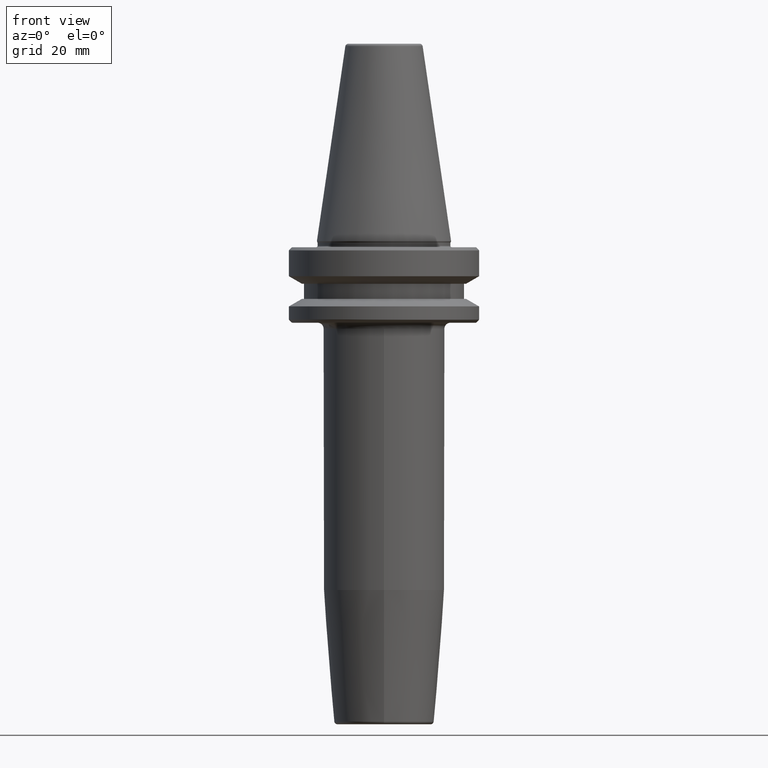
[diagram: clean part render]
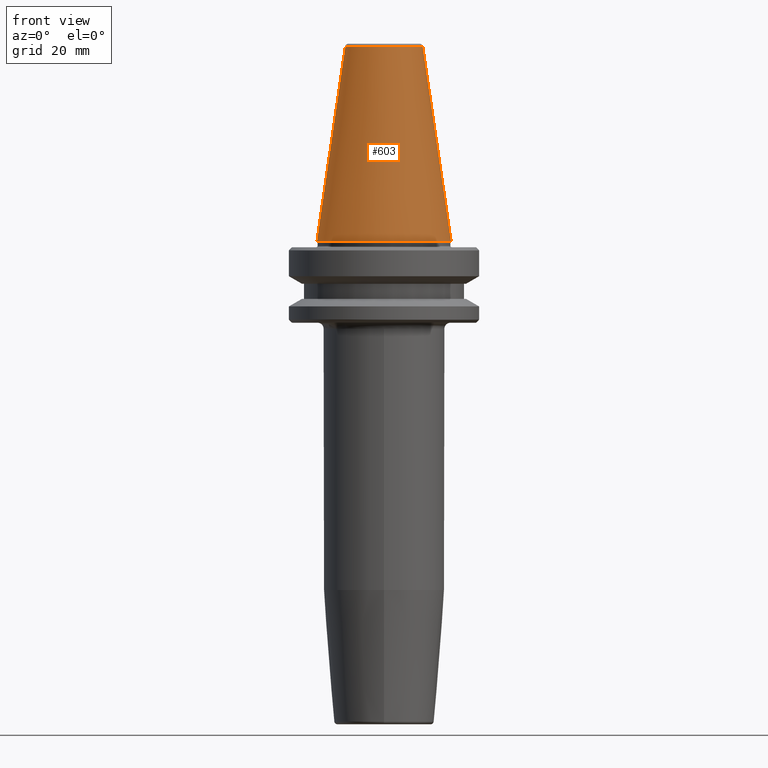
[diagram: same view with one face highlighted and labeled with its STEP entity id]
A machine part, front view. The second image highlights one B-rep face of the part: STEP entity #603.
In plain terms, the highlighted conical surface has half-angle 8.297 deg.
Its self-contained STEP definition (entity closure, byte-faithful):
#20 = DIRECTION ( 'NONE',  ( -0.0000000000000000000, -0.0000000000000000000, 1.000000000000000000 ) ) ;
#25 = CARTESIAN_POINT ( 'NONE',  ( 12.81219950706224800, 2.145409711370550300E-015, 64.54430822726730800 ) ) ;
#31 = LINE ( 'NONE', #1068, #1046 ) ;
#60 = ORIENTED_EDGE ( 'NONE', *, *, #557, .T. ) ;
#109 = DIRECTION ( 'NONE',  ( 1.000000000000000000, 0.0000000000000000000, 0.0000000000000000000 ) ) ;
#115 = CARTESIAN_POINT ( 'NONE',  ( -12.81219950706224800, 0.0000000000000000000, 64.54430822726730800 ) ) ;
#123 = VERTEX_POINT ( 'NONE', #545 ) ;
#133 = ORIENTED_EDGE ( 'NONE', *, *, #757, .F. ) ;
#251 = CARTESIAN_POINT ( 'NONE',  ( 0.0000000000000000000, 0.0000000000000000000, 64.54430822726730800 ) ) ;
#363 = VECTOR ( 'NONE', #602, 1000.000000000000000 ) ;
#402 = FACE_OUTER_BOUND ( 'NONE', #1080, .T. ) ;
#465 = CIRCLE ( 'NONE', #754, 22.22500000000000500 ) ;
#512 = CIRCLE ( 'NONE', #878, 12.81219950706224800 ) ;
#545 = CARTESIAN_POINT ( 'NONE',  ( 22.22500000000000500, 0.0000000000000000000, 0.0000000000000000000 ) ) ;
#557 = EDGE_CURVE ( 'NONE', #1155, #123, #465, .T. ) ;
#602 = DIRECTION ( 'NONE',  ( -0.1443082272673071000, 0.0000000000000000000, -0.9895327864921743500 ) ) ;
#603 = ADVANCED_FACE ( 'NONE', ( #402 ), #630, .T. ) ;
#621 = LINE ( 'NONE', #982, #363 ) ;
#624 = VERTEX_POINT ( 'NONE', #25 ) ;
#630 = CONICAL_SURFACE ( 'NONE', #941, 12.81219950706224800, 0.1448138465474191100 ) ;
#660 = DIRECTION ( 'NONE',  ( 0.1443082272673071000, 1.767266086135364600E-017, -0.9895327864921743500 ) ) ;
#668 = CARTESIAN_POINT ( 'NONE',  ( 0.0000000000000000000, 0.0000000000000000000, 64.54430822726730800 ) ) ;
#754 = AXIS2_PLACEMENT_3D ( 'NONE', #1000, #20, #1153 ) ;
#757 = EDGE_CURVE ( 'NONE', #1145, #624, #512, .T. ) ;
#858 = ORIENTED_EDGE ( 'NONE', *, *, #947, .F. ) ;
#874 = ORIENTED_EDGE ( 'NONE', *, *, #895, .T. ) ;
#878 = AXIS2_PLACEMENT_3D ( 'NONE', #251, #1052, #109 ) ;
#895 = EDGE_CURVE ( 'NONE', #1145, #1155, #621, .T. ) ;
#941 = AXIS2_PLACEMENT_3D ( 'NONE', #668, #1015, #1173 ) ;
#947 = EDGE_CURVE ( 'NONE', #624, #123, #31, .T. ) ;
#982 = CARTESIAN_POINT ( 'NONE',  ( -12.81219950706224800, 0.0000000000000000000, 64.54430822726730800 ) ) ;
#1000 = CARTESIAN_POINT ( 'NONE',  ( 0.0000000000000000000, 0.0000000000000000000, 0.0000000000000000000 ) ) ;
#1001 = CARTESIAN_POINT ( 'NONE',  ( -22.22500000000000500, 2.721777511104993200E-015, 0.0000000000000000000 ) ) ;
#1015 = DIRECTION ( 'NONE',  ( 0.0000000000000000000, 0.0000000000000000000, -1.000000000000000000 ) ) ;
#1046 = VECTOR ( 'NONE', #660, 1000.000000000000000 ) ;
#1052 = DIRECTION ( 'NONE',  ( -0.0000000000000000000, -0.0000000000000000000, 1.000000000000000000 ) ) ;
#1068 = CARTESIAN_POINT ( 'NONE',  ( 12.81219950706224800, 1.569041911636107800E-015, 64.54430822726730800 ) ) ;
#1080 = EDGE_LOOP ( 'NONE', ( #858, #133, #874, #60 ) ) ;
#1145 = VERTEX_POINT ( 'NONE', #115 ) ;
#1153 = DIRECTION ( 'NONE',  ( 1.000000000000000000, 0.0000000000000000000, 0.0000000000000000000 ) ) ;
#1155 = VERTEX_POINT ( 'NONE', #1001 ) ;
#1173 = DIRECTION ( 'NONE',  ( -1.000000000000000000, 0.0000000000000000000, 0.0000000000000000000 ) ) ;